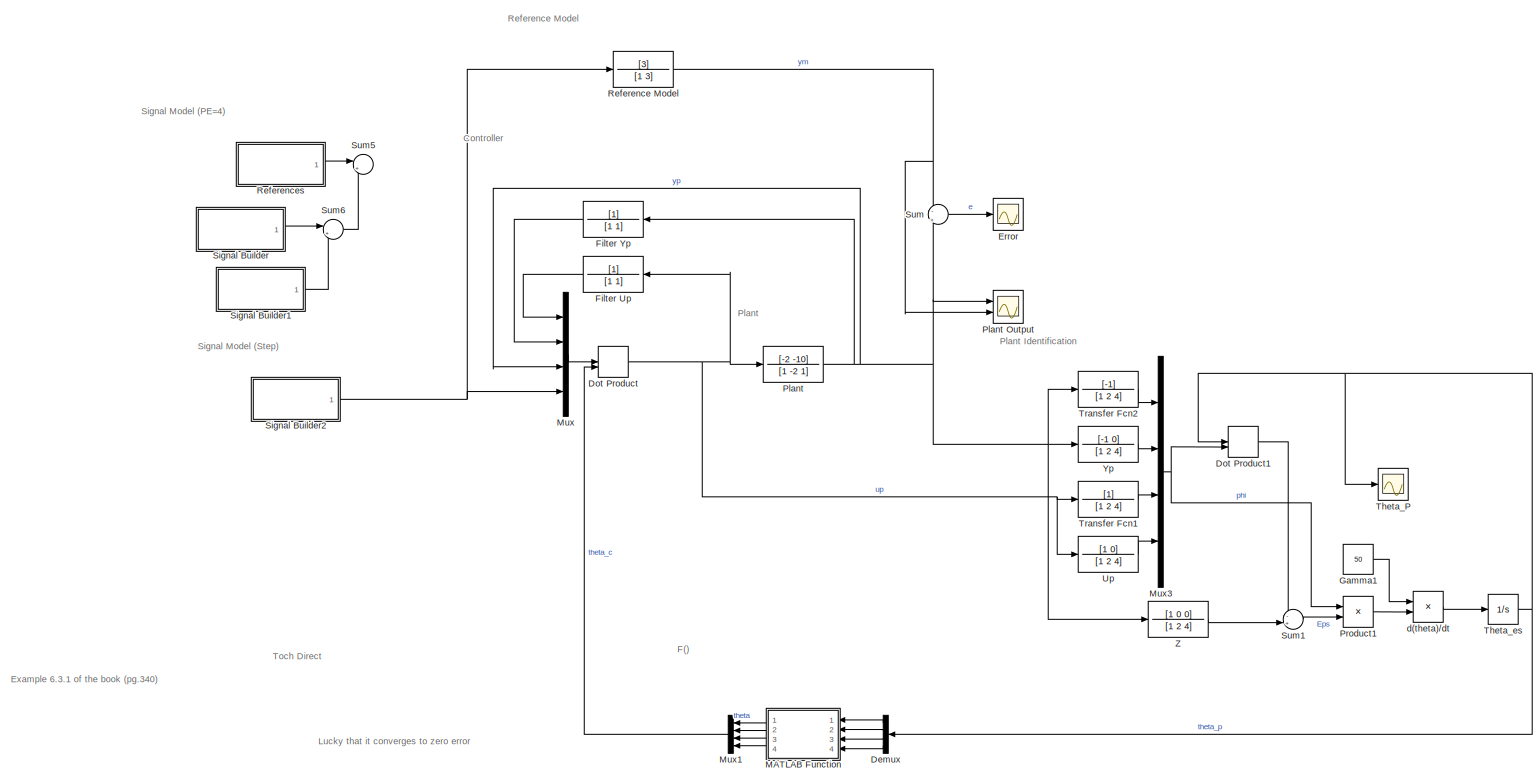
[diagram: root canvas - part 1/1, most of the canvas]
MODEL slx_5b15492d6b62
KIND model
CONFIG AbsTol = auto
CONFIG EnableMultiTasking = off
CONFIG FixedStep = auto
CONFIG MaxStep = auto
CONFIG MinStep = auto
CONFIG RelTol = 1e-3
CONFIG SampleTimeConstraint = Unconstrained
CONFIG Solver = VariableStepAuto
CONFIG SolverName = VariableStepAuto
CONFIG StartTime = 0.0
CONFIG StopTime = 20
BLOCK [Demux] Demux
  DisplayOption = bar
  Ports = [1, 4]
BLOCK [DotProduct] Dot Product
  OutDataTypeStr = Inherit: Inherit via internal rule
BLOCK [DotProduct] Dot Product1
  OutDataTypeStr = Inherit: Inherit via internal rule
BLOCK [Scope] Error
  NumInputPorts = 1
  Ports = [1]
  ScopeSpecificationString = Simulink.scopes.TimeScopeBlockCfg('CurrentConfiguration', extmgr.ConfigurationSet(extmgr.Configuration('Core','General UI',true),extmgr.Configuration('Core','Source UI',true),extmgr.Configuration('Sources','WiredSimulink',true),extmgr.Configuration('Visuals','Time Domain',true,'SerializedDisplays',{struct('MinYLimReal','-11.13719','MaxYLimReal','11.8922','YLabelReal','','MinYLimMag','0.00000','Max...<+1424ch>
BLOCK [TransferFcn] Filter Up
  Denominator = [1 1]
BLOCK [TransferFcn] Filter Yp
  Denominator = [1 1]
BLOCK [Constant] Gamma1
  Value = 50
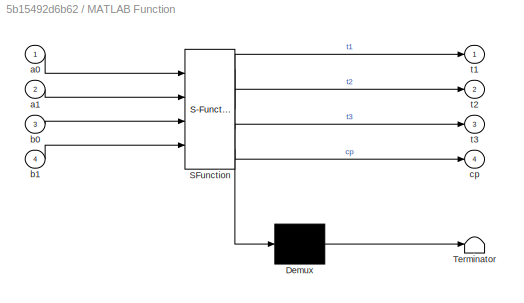
BLOCK [SubSystem] MATLAB Function
  ErrorFcn = Stateflow.Translate.translate
  PermitHierarchicalResolution = ExplicitOnly
  Ports = [4, 4]
  RequestExecContextInheritance = off
  SFBlockType = MATLAB Function
  TreatAsAtomicUnit = on
  Variant = off
BLOCK [Demux] MATLAB Function/ Demux 
  Outputs = 1
  Ports = [1, 1]
BLOCK [S-Function] MATLAB Function/ SFunction 
  EnableBusSupport = on
  FunctionName = sf_sfun
  PortCounts = [4 5]
  Ports = [4, 5]
  SFcnIsStateOwnerBlock = off
  SFunctionDeploymentMode = off
  Tag = Stateflow S-Function MRAC_Indirect 2
BLOCK [Terminator] MATLAB Function/ Terminator 
BLOCK [Inport] MATLAB Function/a0
  IconDisplay = Port number
BLOCK [Inport] MATLAB Function/a1
  IconDisplay = Port number
  Port = 2
BLOCK [Inport] MATLAB Function/b0
  IconDisplay = Port number
  Port = 3
BLOCK [Inport] MATLAB Function/b1
  IconDisplay = Port number
  Port = 4
BLOCK [Outport] MATLAB Function/cp
  IconDisplay = Port number
  Port = 4
BLOCK [Outport] MATLAB Function/t1
  IconDisplay = Port number
BLOCK [Outport] MATLAB Function/t2
  IconDisplay = Port number
  Port = 2
BLOCK [Outport] MATLAB Function/t3
  IconDisplay = Port number
  Port = 3
BLOCK [Mux] Mux
  DisplayOption = bar
  Ports = [4, 1]
BLOCK [Mux] Mux1
  DisplayOption = bar
  Ports = [4, 1]
BLOCK [Mux] Mux3
  DisplayOption = bar
  Ports = [4, 1]
BLOCK [TransferFcn] Plant
  Denominator = [1 -2 1]
  Numerator = [-2 -10]
BLOCK [Scope] Plant Output
  NumInputPorts = 2
  Ports = [2]
  ScopeSpecificationString = Simulink.scopes.TimeScopeBlockCfg('CurrentConfiguration', extmgr.ConfigurationSet(extmgr.Configuration('Core','General UI',true),extmgr.Configuration('Core','Source UI',true),extmgr.Configuration('Sources','WiredSimulink',true,'DataLoggingVariableName','ScopeData1'),extmgr.Configuration('Visuals','Time Domain',true,'SerializedDisplays',{struct('MinYLimReal','-5.23102','MaxYLimReal','4.35674','YLab...<+1467ch>
BLOCK [Product] Product1
  InputSameDT = off
  OutDataTypeStr = Inherit: Inherit via internal rule
  Ports = [2, 1]
  RndMeth = Floor
  SaturateOnIntegerOverflow = off
BLOCK [TransferFcn] Reference Model
  Denominator = [1 3]
  Numerator = [3]
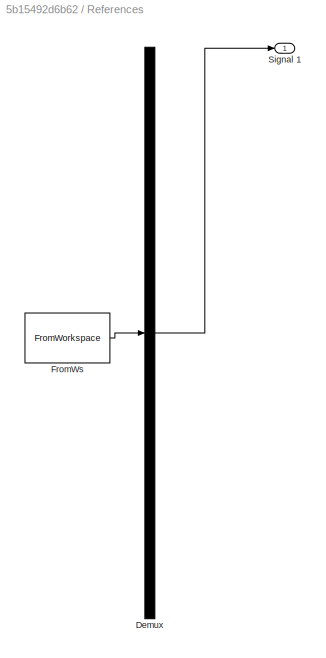
BLOCK [SubSystem] References
  ClipboardFcn = sigbuilder_block('clipboard');
  CloseFcn = sigbuilder_block('close');
  ContinueFcn = sigbuilder_block('continue');
  CopyFcn = sigbuilder_block('copy');
  DeleteFcn = sigbuilder_block('delete');
  LoadFcn = sigbuilder_block('load');
  MaskHideContents = on
  ModelCloseFcn = sigbuilder_block('modelClose');
  NameChangeFcn = sigbuilder_block('namechange');
  OpenFcn = sigbuilder_block('open',[437.6 199.2 550.4 400 ]);
  PauseFcn = sigbuilder_block('pause');
  Ports = [0, 1]
  PreSaveFcn = sigbuilder_block('preSave');
  RequestExecContextInheritance = off
  StartFcn = sigbuilder_block('start');
  StopFcn = sigbuilder_block('stop');
  Tag = STV Subsys
  Variant = off
BLOCK [Demux] References/Demux
  Outputs = 1
  Ports = [1, 1]
  Tag = STV Demux
BLOCK [FromWorkspace] References/FromWs
  SampleTime = 0
  Tag = STV FromWs
  VariableName = tuvar
  ZeroCross = on
BLOCK [Outport] References/Signal 1
  IconDisplay = Port number
  Tag = STV Outport
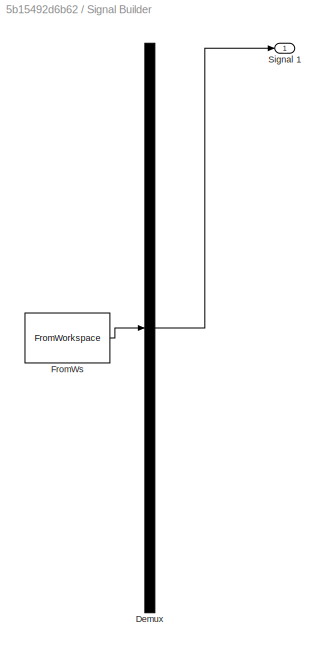
BLOCK [SubSystem] Signal Builder
  ClipboardFcn = sigbuilder_block('clipboard');
  CloseFcn = sigbuilder_block('close');
  ContinueFcn = sigbuilder_block('continue');
  CopyFcn = sigbuilder_block('copy');
  DeleteFcn = sigbuilder_block('delete');
  LoadFcn = sigbuilder_block('load');
  MaskHideContents = on
  ModelCloseFcn = sigbuilder_block('modelClose');
  NameChangeFcn = sigbuilder_block('namechange');
  OpenFcn = sigbuilder_block('open',[437.6 199.2 550.4 400 ]);
  PauseFcn = sigbuilder_block('pause');
  Ports = [0, 1]
  PreSaveFcn = sigbuilder_block('preSave');
  RequestExecContextInheritance = off
  StartFcn = sigbuilder_block('start');
  StopFcn = sigbuilder_block('stop');
  Tag = STV Subsys
  Variant = off
BLOCK [Demux] Signal Builder/Demux
  Outputs = 1
  Ports = [1, 1]
  Tag = STV Demux
BLOCK [FromWorkspace] Signal Builder/FromWs
  SampleTime = 0
  Tag = STV FromWs
  VariableName = tuvar
  ZeroCross = on
BLOCK [Outport] Signal Builder/Signal 1
  IconDisplay = Port number
  Tag = STV Outport
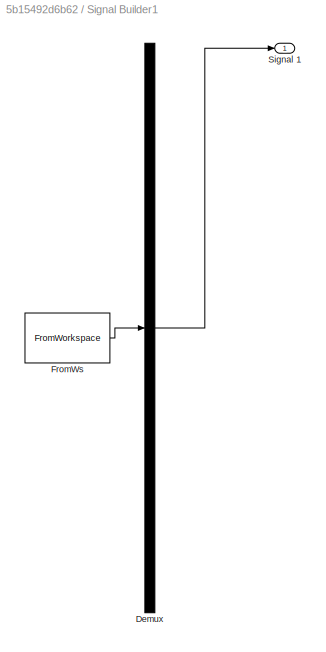
BLOCK [SubSystem] Signal Builder1
  ClipboardFcn = sigbuilder_block('clipboard');
  CloseFcn = sigbuilder_block('close');
  ContinueFcn = sigbuilder_block('continue');
  CopyFcn = sigbuilder_block('copy');
  DeleteFcn = sigbuilder_block('delete');
  LoadFcn = sigbuilder_block('load');
  MaskHideContents = on
  ModelCloseFcn = sigbuilder_block('modelClose');
  NameChangeFcn = sigbuilder_block('namechange');
  OpenFcn = sigbuilder_block('open',[437.6 199.2 550.4 400 ]);
  PauseFcn = sigbuilder_block('pause');
  Ports = [0, 1]
  PreSaveFcn = sigbuilder_block('preSave');
  RequestExecContextInheritance = off
  StartFcn = sigbuilder_block('start');
  StopFcn = sigbuilder_block('stop');
  Tag = STV Subsys
  Variant = off
BLOCK [Demux] Signal Builder1/Demux
  Outputs = 1
  Ports = [1, 1]
  Tag = STV Demux
BLOCK [FromWorkspace] Signal Builder1/FromWs
  SampleTime = 0
  Tag = STV FromWs
  VariableName = tuvar
  ZeroCross = on
BLOCK [Outport] Signal Builder1/Signal 1
  IconDisplay = Port number
  Tag = STV Outport
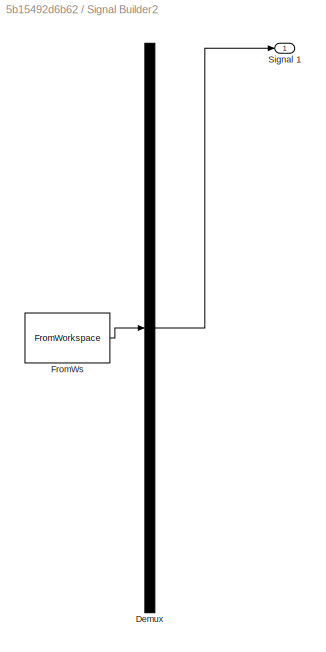
BLOCK [SubSystem] Signal Builder2
  ClipboardFcn = sigbuilder_block('clipboard');
  CloseFcn = sigbuilder_block('close');
  ContinueFcn = sigbuilder_block('continue');
  CopyFcn = sigbuilder_block('copy');
  DeleteFcn = sigbuilder_block('delete');
  LoadFcn = sigbuilder_block('load');
  MaskHideContents = on
  ModelCloseFcn = sigbuilder_block('modelClose');
  NameChangeFcn = sigbuilder_block('namechange');
  OpenFcn = sigbuilder_block('open',[437.6 199.2 550.4 400 ]);
  PauseFcn = sigbuilder_block('pause');
  Ports = [0, 1]
  PreSaveFcn = sigbuilder_block('preSave');
  RequestExecContextInheritance = off
  StartFcn = sigbuilder_block('start');
  StopFcn = sigbuilder_block('stop');
  Tag = STV Subsys
  Variant = off
BLOCK [Demux] Signal Builder2/Demux
  Outputs = 1
  Ports = [1, 1]
  Tag = STV Demux
BLOCK [FromWorkspace] Signal Builder2/FromWs
  SampleTime = 0
  Tag = STV FromWs
  VariableName = tuvar
  ZeroCross = on
BLOCK [Outport] Signal Builder2/Signal 1
  IconDisplay = Port number
  Tag = STV Outport
BLOCK [Sum] Sum
  IconShape = round
  InputSameDT = off
  Inputs = -|+
  OutDataTypeStr = Inherit: Inherit via internal rule
  Ports = [2, 1]
  SaturateOnIntegerOverflow = off
BLOCK [Sum] Sum1
  IconShape = round
  InputSameDT = off
  Inputs = -+|
  OutDataTypeStr = Inherit: Inherit via internal rule
  Ports = [2, 1]
  SaturateOnIntegerOverflow = off
BLOCK [Sum] Sum5
  IconShape = round
  InputSameDT = off
  Inputs = |++
  OutDataTypeStr = Inherit: Inherit via internal rule
  Ports = [2, 1]
  SaturateOnIntegerOverflow = off
BLOCK [Sum] Sum6
  IconShape = round
  InputSameDT = off
  Inputs = |++
  OutDataTypeStr = Inherit: Inherit via internal rule
  Ports = [2, 1]
  SaturateOnIntegerOverflow = off
BLOCK [Scope] Theta_P
  NumInputPorts = 1
  Ports = [1]
  ScopeSpecificationString = Simulink.scopes.TimeScopeBlockCfg('CurrentConfiguration', extmgr.ConfigurationSet(extmgr.Configuration('Core','General UI',true),extmgr.Configuration('Core','Source UI',true),extmgr.Configuration('Sources','WiredSimulink',true,'DataLoggingVariableName','ScopeData1'),extmgr.Configuration('Visuals','Time Domain',true,'SerializedDisplays',{struct('MinYLimReal','-11.57236','MaxYLimReal','8.00648','YLa...<+1480ch>
BLOCK [Integrator] Theta_es
  InitialCondition = [1;1;1;1]
  Ports = [1, 1]
BLOCK [TransferFcn] Transfer Fcn1
  Denominator = [1 2 4]
BLOCK [TransferFcn] Transfer Fcn2
  Denominator = [1 2 4]
  Numerator = [-1]
BLOCK [TransferFcn] Up
  Denominator = [1 2 4]
  Numerator = [1 0]
BLOCK [TransferFcn] Yp
  Denominator = [1 2 4]
  Numerator = [-1 0]
BLOCK [TransferFcn] Z
  Denominator = [1 2 4]
  Numerator = [1 0 0]
BLOCK [Product] d(theta)//dt
  InputSameDT = off
  OutDataTypeStr = Inherit: Inherit via internal rule
  Ports = [2, 1]
  RndMeth = Floor
  SaturateOnIntegerOverflow = off
ANNOTATION (root): Controller
ANNOTATION (root): Example 6.3.1 of the book (pg.340)
ANNOTATION (root): F()
ANNOTATION (root): Lucky that it converges to zero error
ANNOTATION (root): Plant
ANNOTATION (root): Plant Identification
ANNOTATION (root): Reference Model
ANNOTATION (root): Signal Model (PE=4)
ANNOTATION (root): Signal Model (Step)
ANNOTATION (root): Toch Direct
LINE Demux:1 -> MATLAB Function:1
LINE Demux:2 -> MATLAB Function:2
LINE Demux:3 -> MATLAB Function:3
LINE Demux:4 -> MATLAB Function:4
LINE Dot Product1:1 -> Sum1:1
NET Dot Product:1 -> Filter Up:1, Plant:1, Transfer Fcn1:1, Up:1
LINE Filter Up:1 -> Mux:1
LINE Filter Yp:1 -> Mux:2
LINE Gamma1:1 -> d(theta)//dt:1
LINE MATLAB Function:1 -> Mux1:1
LINE MATLAB Function:2 -> Mux1:2
LINE MATLAB Function:3 -> Mux1:3
LINE MATLAB Function:4 -> Mux1:4
LINE Mux1:1 -> Dot Product:2
NET Mux3:1 -> Dot Product1:2, Product1:1
LINE Mux:1 -> Dot Product:1
NET Plant:1 -> Filter Yp:1, Mux:3, Plant Output:1, Sum:2, Transfer Fcn2:1, Yp:1, Z:1
LINE Product1:1 -> d(theta)//dt:2
NET Reference Model:1 -> Plant Output:2, Sum:1
LINE References:1 -> Sum5:1
LINE Signal Builder1:1 -> Sum6:2
NET Signal Builder2:1 -> Mux:4, Reference Model:1
LINE Signal Builder:1 -> Sum6:1
LINE Sum1:1 -> Product1:2
LINE Sum6:1 -> Sum5:2
LINE Sum:1 -> Error:1
NET Theta_es:1 -> Demux:1, Dot Product1:1, Theta_P:1
LINE Transfer Fcn1:1 -> Mux3:3
LINE Transfer Fcn2:1 -> Mux3:1
LINE Up:1 -> Mux3:4
LINE Yp:1 -> Mux3:2
LINE Z:1 -> Sum1:2
LINE d(theta)//dt:1 -> Theta_es:1
note: NET lines group one-source signal fan-out (src -> all destinations, sorted); 1:1 wires keep LINE
CHART MATLAB Function states=1 transitions=1
  STATE_LABEL 'eML_blk_kernel()'
  STATE_LABEL 'SCRIPT:\nfunction [t1,t2,t3,cp] = F(a0,a1,b0,b1)\ncp = 3/b1;\nA = [1 0 b1; a1 b1 b1+b0; a0 b0 b0];\nb = [a1-b0/b1-3; a1+a0-3-4*b0/b1; a0-3*b0/b1];\nT = A\\b;\nt1 = T(1);\nt2 = T(2);\nt3 = T(3);\nend'
